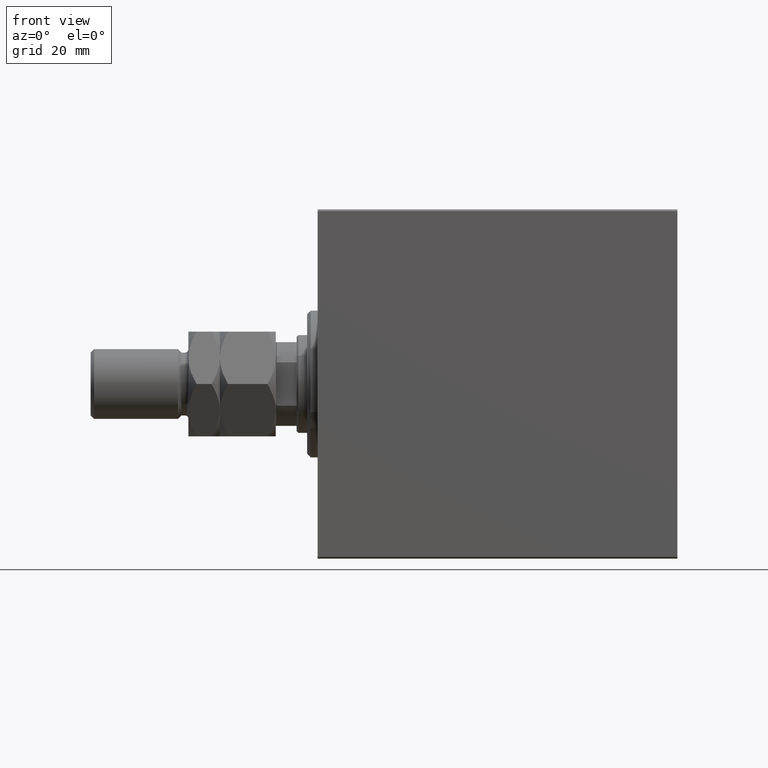
[diagram: clean part render]
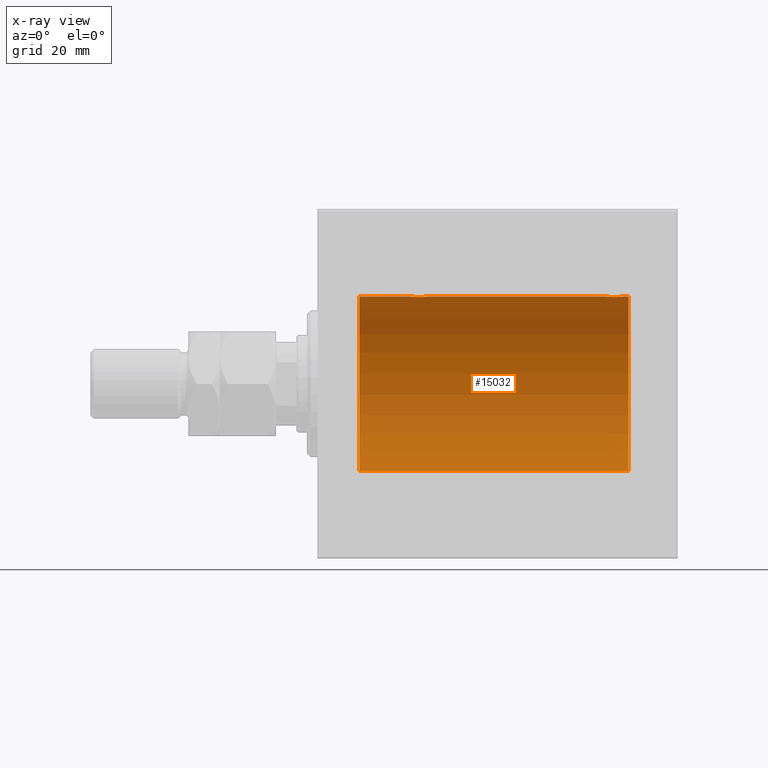
[diagram: x-ray — body ghosted, one internal face saturated and labeled with its STEP entity id]
A machine part, front view, then the same camera in x-ray: the body is ghosted and one INTERNAL B-rep face — a face not visible from any outside direction — is saturated and labeled: STEP entity #15032.
In plain terms, the highlighted cylindrical surface (partial cylindrical patch) has radius 25 mm, axis along (-1, -0, -0).
Its self-contained STEP definition (entity closure, byte-faithful):
#388 = ORIENTED_EDGE ( 'NONE', *, *, #30944, .F. ) ;
#654 = VECTOR ( 'NONE', #28197, 1000.000000000000000 ) ;
#784 = DIRECTION ( 'NONE',  ( 0.000000000000000000, 0.000000000000000000, 1.000000000000000000 ) ) ;
#903 = CARTESIAN_POINT ( 'NONE',  ( 28.83773523386616944, 2.500059064463603153, 24.87467999146394959 ) ) ;
#914 = CARTESIAN_POINT ( 'NONE',  ( 84.19536086700185251, 2.372637051600620328, 24.88723676875458324 ) ) ;
#1098 = EDGE_CURVE ( 'NONE', #34848, #19604, #23414, .T. ) ;
#1120 = CARTESIAN_POINT ( 'NONE',  ( 29.16407969376738052, 2.499940606140134580, 24.87469189697262095 ) ) ;
#1576 = CARTESIAN_POINT ( 'NONE',  ( 26.83138181747519724, 1.254434665533500359, 24.96887599906795785 ) ) ;
#2922 = LINE ( 'NONE', #31098, #16688 ) ;
#3141 = DIRECTION ( 'NONE',  ( -1.000000000000000000, -0.000000000000000000, -0.000000000000000000 ) ) ;
#3497 = AXIS2_PLACEMENT_3D ( 'NONE', #24355, #10495, #784 ) ;
#3516 = CARTESIAN_POINT ( 'NONE',  ( 89.00000000000000000, 0.000000000000000000, 25.00000000000000000 ) ) ;
#3869 = AXIS2_PLACEMENT_3D ( 'NONE', #34782, #3141, #17225 ) ;
#3938 = CARTESIAN_POINT ( 'NONE',  ( 82.49999999999997158, 0.1632133729155518520, 24.99999999999999645 ) ) ;
#4370 = CARTESIAN_POINT ( 'NONE',  ( 31.49999999999997868, 0.1652919547268405509, 24.99999999999999289 ) ) ;
#4606 = CARTESIAN_POINT ( 'NONE',  ( 27.74628466518807812, 2.169035936979783141, 24.90589343070811168 ) ) ;
#5053 = CARTESIAN_POINT ( 'NONE',  ( 28.67198227724997395, 2.483775543901335592, 24.87633190989611265 ) ) ;
#5467 = DIRECTION ( 'NONE',  ( -1.000000000000000000, 0.000000000000000000, 0.000000000000000000 ) ) ;
#5815 = CARTESIAN_POINT ( 'NONE',  ( 86.25304113529936956, 2.169541443998010521, 24.90585268157805032 ) ) ;
#6439 = CIRCLE ( 'NONE', #9373, 25.00000000000000000 ) ;
#6767 = LINE ( 'NONE', #3516, #23059 ) ;
#7394 = CARTESIAN_POINT ( 'NONE',  ( 83.11576698070011560, 1.651337078997080043, 24.94567646296264485 ) ) ;
#7629 = CARTESIAN_POINT ( 'NONE',  ( 82.58033563915886077, 0.6495680347195814663, 24.99207398768919219 ) ) ;
#8513 = CARTESIAN_POINT ( 'NONE',  ( 26.62762890801418081, 0.8054273576766338705, 24.98748174524255461 ) ) ;
#8741 = CARTESIAN_POINT ( 'NONE',  ( 27.01241165387908083, 1.525124164792365011, 24.95380474534677262 ) ) ;
#8919 = DIRECTION ( 'NONE',  ( 0.000000000000000000, 0.000000000000000000, 1.000000000000000000 ) ) ;
#9373 = AXIS2_PLACEMENT_3D ( 'NONE', #16068, #5467, #8919 ) ;
#10100 = ORIENTED_EDGE ( 'NONE', *, *, #14333, .T. ) ;
#10162 = CARTESIAN_POINT ( 'NONE',  ( 87.48376868269156148, 0.3278008924763897713, 24.99836206720143394 ) ) ;
#10171 = CARTESIAN_POINT ( 'NONE',  ( 31.50000000000000000, -3.359922002512890391E-15, 25.00000000000000000 ) ) ;
#10394 = CARTESIAN_POINT ( 'NONE',  ( 86.10765995523901495, 2.247131495942863211, 24.89888190765473652 ) ) ;
#10462 = DIRECTION ( 'NONE',  ( -1.000000000000000000, -0.000000000000000000, -0.000000000000000000 ) ) ;
#10495 = DIRECTION ( 'NONE',  ( -1.000000000000000000, 0.000000000000000000, 0.000000000000000000 ) ) ;
#10852 = CARTESIAN_POINT ( 'NONE',  ( 83.34924793645207330, 1.884745564839651832, 24.92912799315484307 ) ) ;
#11208 = CYLINDRICAL_SURFACE ( 'NONE', #3869, 25.00000000000000000 ) ;
#11307 = CARTESIAN_POINT ( 'NONE',  ( 26.50000000000000355, -1.940558383798427991E-23, 25.00000000000000000 ) ) ;
#11322 = CARTESIAN_POINT ( 'NONE',  ( 84.67198227724996684, 2.483775543901331151, 24.87633190989611265 ) ) ;
#11387 = ORIENTED_EDGE ( 'NONE', *, *, #25592, .F. ) ;
#11533 = CARTESIAN_POINT ( 'NONE',  ( 29.80683588887132629, 2.371819214216748239, 24.88731391344728294 ) ) ;
#11670 = ORIENTED_EDGE ( 'NONE', *, *, #1098, .T. ) ;
#11762 = CARTESIAN_POINT ( 'NONE',  ( 28.19536086700186317, 2.372637051600623881, 24.88723676875458324 ) ) ;
#12329 = ORIENTED_EDGE ( 'NONE', *, *, #18365, .T. ) ;
#12519 = B_SPLINE_CURVE_WITH_KNOTS ( 'NONE', 3,
 ( #37459, #41823, #10162, #38355, #41152, #20791, #34901, #17332, #27051, #27947, #42053, #5815, #10394, #19897, #35811, #42286, #35586, #35350, #11322, #21012, #914, #14310, #29094, #42505, #10852, #7394, #14766, #25401, #21710, #17559, #7629, #43196, #3938, #39499 ),
 .UNSPECIFIED., .F., .F.,
 ( 4, 2, 2, 2, 2, 2, 2, 2, 2, 2, 2, 2, 2, 2, 2, 2, 4 ),
 ( 2.712282590340838778E-18, 0.0004888140276038966661, 0.0009776280552077907301, 0.001466442082811684035, 0.001955256110415577123, 0.002444070138019470862, 0.002932884165623363733, 0.003421698193227256605, 0.003910512220831149910, 0.004399326248435042781, 0.004888140276038936520, 0.005376954303642829391, 0.005865768331246722263, 0.006354582358850615134, 0.006843396386454508006, 0.007332210414058401744, 0.007821024441662294616 ),
 .UNSPECIFIED. ) ;
#14096 = LINE ( 'NONE', #42067, #654 ) ;
#14310 = CARTESIAN_POINT ( 'NONE',  ( 83.89254763180201735, 2.247309494740944213, 24.89886665287247780 ) ) ;
#14333 = EDGE_CURVE ( 'NONE', #37077, #29713, #35660, .T. ) ;
#14754 = CARTESIAN_POINT ( 'NONE',  ( 30.10765995523902916, 2.247131495942866763, 24.89888190765473297 ) ) ;
#14766 = CARTESIAN_POINT ( 'NONE',  ( 83.01241165387908438, 1.525124164792365455, 24.95380474534677262 ) ) ;
#15032 = ADVANCED_FACE ( 'NONE', ( #20908 ), #11208, .F. ) ;
#15207 = CARTESIAN_POINT ( 'NONE',  ( 27.34924793645207330, 1.884745564839652276, 24.92912799315484662 ) ) ;
#15669 = CARTESIAN_POINT ( 'NONE',  ( 31.50000000000000000, -3.359922002512890391E-15, 25.00000000000000000 ) ) ;
#15778 = VERTEX_POINT ( 'NONE', #10171 ) ;
#16068 = CARTESIAN_POINT ( 'NONE',  ( 89.00000000000000000, 0.000000000000000000, 0.000000000000000000 ) ) ;
#16332 = CARTESIAN_POINT ( 'NONE',  ( 26.50000000000000355, -1.940558383798427991E-23, 25.00000000000000000 ) ) ;
#16688 = VECTOR ( 'NONE', #42183, 1000.000000000000000 ) ;
#17225 = DIRECTION ( 'NONE',  ( 0.000000000000000000, 0.000000000000000000, 1.000000000000000000 ) ) ;
#17332 = CARTESIAN_POINT ( 'NONE',  ( 86.98824666821938933, 1.524323445682836509, 24.95385641887458661 ) ) ;
#17461 = CARTESIAN_POINT ( 'NONE',  ( 87.50000000000000000, 2.791216707898424283E-15, 25.00000000000000000 ) ) ;
#17559 = CARTESIAN_POINT ( 'NONE',  ( 82.62762890801417370, 0.8054273576766330933, 24.98748174524255106 ) ) ;
#18365 = EDGE_CURVE ( 'NONE', #23195, #34848, #6767, .T. ) ;
#18464 = CARTESIAN_POINT ( 'NONE',  ( 31.16970456409869072, 1.252624798282894858, 24.96896960740658500 ) ) ;
#18695 = CARTESIAN_POINT ( 'NONE',  ( 30.25304113529935179, 2.169541443998012298, 24.90585268157805032 ) ) ;
#18906 = CARTESIAN_POINT ( 'NONE',  ( 31.42019035479158617, 0.6474866336855811255, 24.99212517028518121 ) ) ;
#19399 = B_SPLINE_CURVE_WITH_KNOTS ( 'NONE', 3,
 ( #15669, #4370, #43635, #18906, #28853, #29532, #18464, #36027, #39940, #32784, #25610, #18695, #14754, #11533, #32556, #22145, #1120, #903, #5053, #36696, #11762, #36257, #4606, #22829, #15207, #42962, #8741, #1576, #29303, #8513, #29084, #40395, #43409, #11307 ),
 .UNSPECIFIED., .F., .F.,
 ( 4, 2, 2, 2, 2, 2, 2, 2, 2, 2, 2, 2, 2, 2, 2, 2, 4 ),
 ( 5.554631526300177807E-18, 0.0004888140276038974250, 0.0009776280552077894290, 0.001466442082811681216, 0.001955256110415573220, 0.002444070138019465224, 0.002932884165623356795, 0.003421698193227248799, 0.003910512220831140369, 0.004399326248435032373, 0.004888140276038924377, 0.005376954303642816381, 0.005865768331246707518, 0.006354582358850599522, 0.006843396386454491526, 0.007332210414058383530, 0.007821024441662275534 ),
 .UNSPECIFIED. ) ;
#19604 = VERTEX_POINT ( 'NONE', #29783 ) ;
#19897 = CARTESIAN_POINT ( 'NONE',  ( 85.80683588887131918, 2.371819214216743799, 24.88731391344729360 ) ) ;
#20791 = CARTESIAN_POINT ( 'NONE',  ( 87.24651678820868028, 1.109060198064593328, 24.97584694923138215 ) ) ;
#20908 = FACE_OUTER_BOUND ( 'NONE', #24380, .T. ) ;
#21012 = CARTESIAN_POINT ( 'NONE',  ( 84.35125657267359145, 2.419890192637109028, 24.88262770889313558 ) ) ;
#21710 = CARTESIAN_POINT ( 'NONE',  ( 82.75307623591046990, 1.108237982093032370, 24.97588368351298627 ) ) ;
#22145 = CARTESIAN_POINT ( 'NONE',  ( 29.32637449227344462, 2.484060984458440480, 24.87630362147113772 ) ) ;
#22829 = CARTESIAN_POINT ( 'NONE',  ( 27.47549655812820291, 1.988066470813639519, 24.92099187803979632 ) ) ;
#23059 = VECTOR ( 'NONE', #24313, 1000.000000000000000 ) ;
#23195 = VERTEX_POINT ( 'NONE', #16332 ) ;
#23302 = EDGE_CURVE ( 'NONE', #36654, #15778, #2922, .T. ) ;
#23414 = CIRCLE ( 'NONE', #3497, 25.00000000000000000 ) ;
#24313 = DIRECTION ( 'NONE',  ( -1.000000000000000000, -0.000000000000000000, -0.000000000000000000 ) ) ;
#24355 = CARTESIAN_POINT ( 'NONE',  ( 11.99999999999999645, 0.000000000000000000, 0.000000000000000000 ) ) ;
#24380 = EDGE_LOOP ( 'NONE', ( #388, #11387, #10100, #39898, #39624, #37300, #12329, #11670 ) ) ;
#24560 = CARTESIAN_POINT ( 'NONE',  ( 89.00000000000000000, 0.000000000000000000, 25.00000000000000000 ) ) ;
#25401 = CARTESIAN_POINT ( 'NONE',  ( 82.83138181747517592, 1.254434665533501914, 24.96887599906796495 ) ) ;
#25592 = EDGE_CURVE ( 'NONE', #37077, #26721, #6439, .T. ) ;
#25610 = CARTESIAN_POINT ( 'NONE',  ( 30.52633503512341662, 1.986787236855548366, 24.92109717386378165 ) ) ;
#25677 = CARTESIAN_POINT ( 'NONE',  ( 89.00000000000000000, 0.000000000000000000, 25.00000000000000000 ) ) ;
#26721 = VERTEX_POINT ( 'NONE', #26885 ) ;
#26885 = CARTESIAN_POINT ( 'NONE',  ( 89.00000000000000000, 3.061616997868383043E-15, -25.00000000000000000 ) ) ;
#27051 = CARTESIAN_POINT ( 'NONE',  ( 86.88269712975893810, 1.652881481536634167, 24.94556728625772024 ) ) ;
#27115 = EDGE_CURVE ( 'NONE', #29713, #36654, #12519, .T. ) ;
#27947 = CARTESIAN_POINT ( 'NONE',  ( 86.65214997850824830, 1.883339088673195327, 24.92922739080160355 ) ) ;
#28197 = DIRECTION ( 'NONE',  ( -1.000000000000000000, -0.000000000000000000, -0.000000000000000000 ) ) ;
#28853 = CARTESIAN_POINT ( 'NONE',  ( 31.37206391457592858, 0.8063280894284541311, 24.98745245851526064 ) ) ;
#29084 = CARTESIAN_POINT ( 'NONE',  ( 26.58033563915884301, 0.6495680347195815774, 24.99207398768918864 ) ) ;
#29094 = CARTESIAN_POINT ( 'NONE',  ( 83.74628466518807102, 2.169035936979781365, 24.90589343070811168 ) ) ;
#29303 = CARTESIAN_POINT ( 'NONE',  ( 26.75307623591046280, 1.108237982093032592, 24.97588368351298982 ) ) ;
#29532 = CARTESIAN_POINT ( 'NONE',  ( 31.24651678820870515, 1.109060198064595992, 24.97584694923138215 ) ) ;
#29713 = VERTEX_POINT ( 'NONE', #17461 ) ;
#29783 = CARTESIAN_POINT ( 'NONE',  ( 11.99999999999999645, 3.061616997868383043E-15, -25.00000000000000000 ) ) ;
#30031 = CARTESIAN_POINT ( 'NONE',  ( 11.99999999999999645, 0.000000000000000000, 25.00000000000000000 ) ) ;
#30944 = EDGE_CURVE ( 'NONE', #26721, #19604, #14096, .T. ) ;
#31098 = CARTESIAN_POINT ( 'NONE',  ( 89.00000000000000000, 0.000000000000000000, 25.00000000000000000 ) ) ;
#31750 = CARTESIAN_POINT ( 'NONE',  ( 82.49999999999998579, -1.940163953345817485E-23, 25.00000000000000000 ) ) ;
#32556 = CARTESIAN_POINT ( 'NONE',  ( 29.64916515999326307, 2.419847904056431798, 24.88263203448060423 ) ) ;
#32668 = VECTOR ( 'NONE', #10462, 1000.000000000000000 ) ;
#32784 = CARTESIAN_POINT ( 'NONE',  ( 30.65214997850824119, 1.883339088673197770, 24.92922739080161065 ) ) ;
#34782 = CARTESIAN_POINT ( 'NONE',  ( 89.00000000000000000, 0.000000000000000000, 0.000000000000000000 ) ) ;
#34848 = VERTEX_POINT ( 'NONE', #30031 ) ;
#34901 = CARTESIAN_POINT ( 'NONE',  ( 87.16970456409866586, 1.252624798282892860, 24.96896960740658500 ) ) ;
#35350 = CARTESIAN_POINT ( 'NONE',  ( 84.83773523386615523, 2.500059064463600489, 24.87467999146394604 ) ) ;
#35586 = CARTESIAN_POINT ( 'NONE',  ( 85.16407969376736276, 2.499940606140130583, 24.87469189697261740 ) ) ;
#35660 = LINE ( 'NONE', #24560, #32668 ) ;
#35811 = CARTESIAN_POINT ( 'NONE',  ( 85.64916515999325952, 2.419847904056426025, 24.88263203448060779 ) ) ;
#36027 = CARTESIAN_POINT ( 'NONE',  ( 30.98824666821940355, 1.524323445682838285, 24.95385641887458661 ) ) ;
#36257 = CARTESIAN_POINT ( 'NONE',  ( 27.89254763180202801, 2.247309494740949098, 24.89886665287248135 ) ) ;
#36654 = VERTEX_POINT ( 'NONE', #31750 ) ;
#36696 = CARTESIAN_POINT ( 'NONE',  ( 28.35125657267361277, 2.419890192637116133, 24.88262770889313913 ) ) ;
#37077 = VERTEX_POINT ( 'NONE', #25677 ) ;
#37300 = ORIENTED_EDGE ( 'NONE', *, *, #41094, .T. ) ;
#37459 = CARTESIAN_POINT ( 'NONE',  ( 87.50000000000000000, 2.791216707898424283E-15, 25.00000000000000000 ) ) ;
#38355 = CARTESIAN_POINT ( 'NONE',  ( 87.42019035479155775, 0.6474866336855787941, 24.99212517028518832 ) ) ;
#39499 = CARTESIAN_POINT ( 'NONE',  ( 82.49999999999998579, -1.940163953345817485E-23, 25.00000000000000000 ) ) ;
#39624 = ORIENTED_EDGE ( 'NONE', *, *, #23302, .T. ) ;
#39898 = ORIENTED_EDGE ( 'NONE', *, *, #27115, .T. ) ;
#39940 = CARTESIAN_POINT ( 'NONE',  ( 30.88269712975891323, 1.652881481536636832, 24.94556728625771669 ) ) ;
#40395 = CARTESIAN_POINT ( 'NONE',  ( 26.51635884985689984, 0.3289998300458010783, 24.99834914448732448 ) ) ;
#41094 = EDGE_CURVE ( 'NONE', #15778, #23195, #19399, .T. ) ;
#41152 = CARTESIAN_POINT ( 'NONE',  ( 87.37206391457591792, 0.8063280894284519107, 24.98745245851526420 ) ) ;
#41823 = CARTESIAN_POINT ( 'NONE',  ( 87.49999999999998579, 0.1652919547268416056, 25.00000000000000355 ) ) ;
#42053 = CARTESIAN_POINT ( 'NONE',  ( 86.52633503512338109, 1.986787236855545924, 24.92109717386377810 ) ) ;
#42067 = CARTESIAN_POINT ( 'NONE',  ( 89.00000000000000000, 3.061616997868383043E-15, -25.00000000000000000 ) ) ;
#42183 = DIRECTION ( 'NONE',  ( -1.000000000000000000, -0.000000000000000000, -0.000000000000000000 ) ) ;
#42286 = CARTESIAN_POINT ( 'NONE',  ( 85.32637449227343041, 2.484060984458436039, 24.87630362147113772 ) ) ;
#42505 = CARTESIAN_POINT ( 'NONE',  ( 83.47549655812818514, 1.988066470813636410, 24.92099187803979987 ) ) ;
#42962 = CARTESIAN_POINT ( 'NONE',  ( 27.11576698070013691, 1.651337078997080932, 24.94567646296265551 ) ) ;
#43196 = CARTESIAN_POINT ( 'NONE',  ( 82.51635884985688563, 0.3289998300458004121, 24.99834914448731737 ) ) ;
#43409 = CARTESIAN_POINT ( 'NONE',  ( 26.50000000000001066, 0.1632133729155524071, 25.00000000000000355 ) ) ;
#43635 = CARTESIAN_POINT ( 'NONE',  ( 31.48376868269157214, 0.3278008924763925469, 24.99836206720144105 ) ) ;